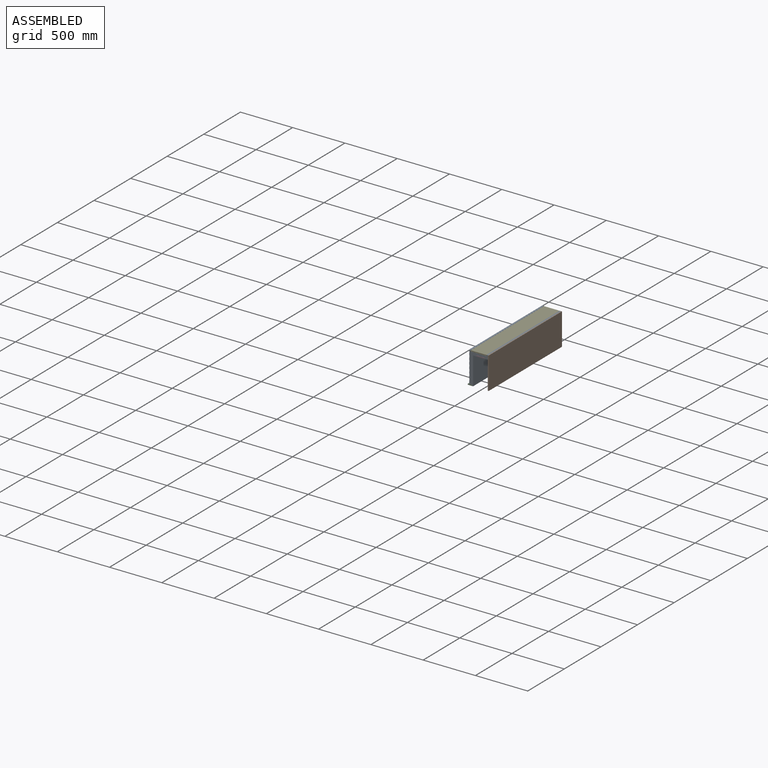
[diagram: assembled view]
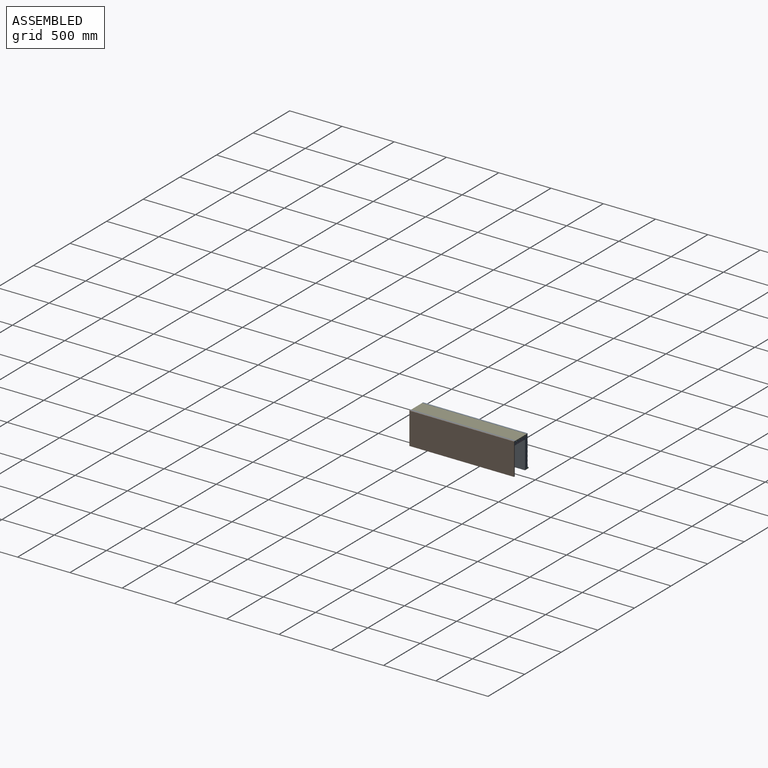
[diagram: assembled view, second angle]
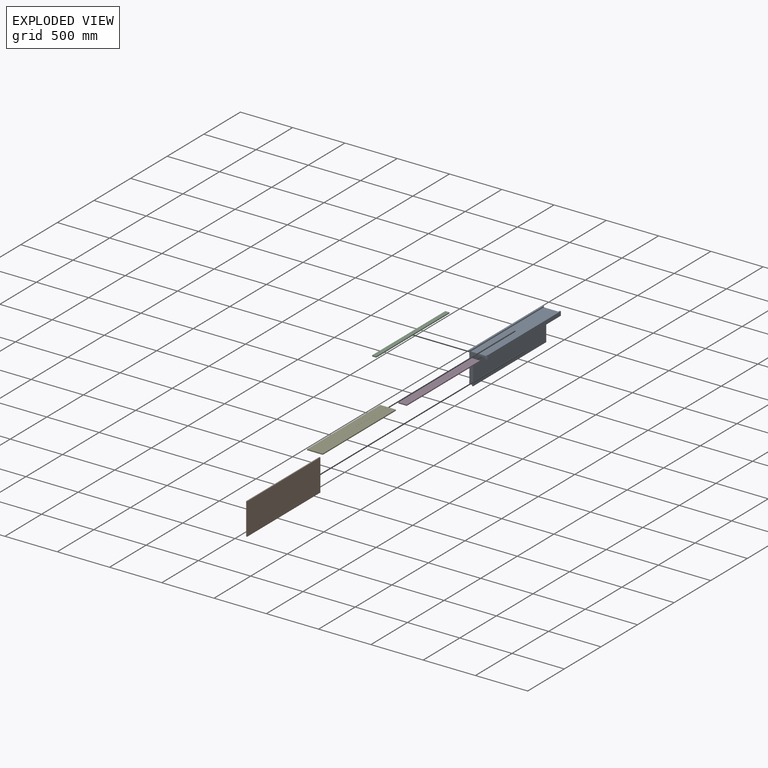
[diagram: exploded view]
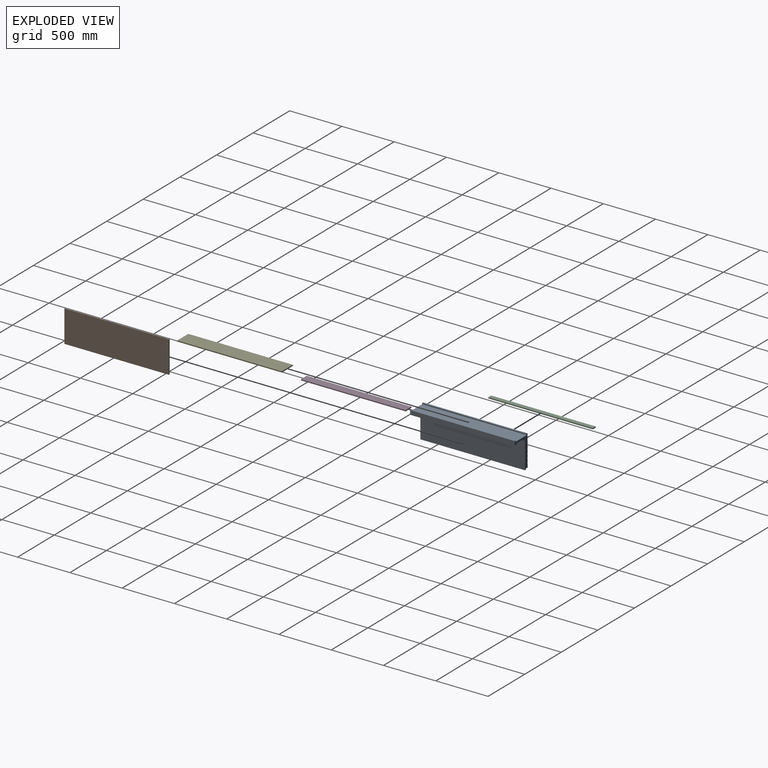
[diagram: exploded view, second angle]
ASSEMBLY  parts=5 mates=4
PART A: 46 faces, bbox 177x1000x306 mm
  f0: plane 1000x14mm, normal (0,0,1), area 14000mm2, adj f1,f2,f3,f41
  f1: plane 306x177mm, normal (0,-1,0), area 13769.7mm2, adj f0,f3,f4,f5,f6,f7,f8,f9
  f2: plane 306x177mm, normal (0,1,0), area 13769.7mm2, adj f0,f3,f4,f5,f6,f7,f8,f9
  f3: plane 1000x5mm, normal (-1,0,0), area 5000mm2, adj f0,f1,f2,f10
  f4: plane 1000x266mm, normal (1,0,0), area 265997.1mm2, adj f1,f2,f5,f44
  f5: plane 1000x30.4mm, normal (0,0,-1), area 30400mm2, adj f1,f2,f4,f6
  f6: plane 1000x11.5mm, normal (1,0,0), area 11499.5mm2, adj f1,f2,f5,f7
  f7: plane 1000x81mm, normal (0,0,-1), area 81000mm2, adj f1,f2,f6,f8
  f8: plane 1000x11.5mm, normal (-1,0,0), area 11500mm2, adj f1,f2,f7,f9
  f9: plane 1000x28.6mm, normal (0,0,-1), area 28600mm2, adj f1,f2,f8,f39
  f10: plane 1000x2mm, normal (0.45,0,-0.89), area 2236.1mm2, adj f1,f2,f3,f11
  f11: plane 1000x22mm, normal (-1,0,0), area 22000mm2, adj f1,f2,f10,f12
  f12: plane 1000x2mm, normal (0.45,0,0.89), area 2236.1mm2, adj f1,f2,f11,f13
  f13: plane 1000x20mm, normal (-1,0,0), area 20000mm2, adj f1,f2,f12,f14
  f14: plane 1000x2mm, normal (0.45,0,-0.89), area 2236.1mm2, adj f1,f2,f13,f15
  f15: plane 1000x22mm, normal (-1,0,0), area 22000mm2, adj f1,f2,f14,f16
  f16: plane 1000x2mm, normal (0.45,0,0.89), area 2236.1mm2, adj f1,f2,f15,f17
  f17: plane 1000x20mm, normal (-1,0,0), area 20000mm2, adj f1,f2,f16,f18
  f18: plane 1000x2mm, normal (0.45,0,-0.89), area 2236.1mm2, adj f1,f2,f17,f19
  f19: plane 1000x22mm, normal (-1,0,0), area 22000mm2, adj f1,f2,f18,f20
  f20: plane 1000x2mm, normal (0.45,0,0.89), area 2236.1mm2, adj f1,f2,f19,f21
  f21: plane 1000x20mm, normal (-1,0,0), area 20000mm2, adj f1,f2,f20,f22
  f22: plane 1000x2mm, normal (0.45,0,-0.89), area 2236.1mm2, adj f1,f2,f21,f23
  f23: plane 1000x22mm, normal (-1,0,0), area 22000mm2, adj f1,f2,f22,f24
  f24: plane 1000x2mm, normal (0.45,0,0.89), area 2236.1mm2, adj f1,f2,f23,f25
  f25: plane 1000x20mm, normal (-1,0,0), area 20000mm2, adj f1,f2,f24,f26
  f26: plane 1000x2mm, normal (0.45,0,-0.89), area 2236.1mm2, adj f1,f2,f25,f27
  f27: plane 1000x22mm, normal (-1,0,0), area 22000mm2, adj f1,f2,f26,f28
  f28: plane 1000x2mm, normal (0.45,0,0.89), area 2236.1mm2, adj f1,f2,f27,f29
  f29: plane 1000x20mm, normal (-1,0,0), area 20000mm2, adj f1,f2,f28,f30
  f30: plane 1000x2mm, normal (0.45,0,-0.89), area 2236.1mm2, adj f1,f2,f29,f31
  f31: plane 1000x22mm, normal (-1,0,0), area 22000mm2, adj f1,f2,f30,f32
  f32: plane 1000x2mm, normal (0.45,0,0.89), area 2236.1mm2, adj f1,f2,f31,f33
  f33: plane 1000x20mm, normal (-1,0,0), area 20000mm2, adj f1,f2,f32,f34
  f34: plane 1000x2mm, normal (0.45,0,-0.89), area 2236.1mm2, adj f1,f2,f33,f35
  f35: plane 1000x22mm, normal (-1,0,0), area 22000mm2, adj f1,f2,f34,f36
  f36: plane 1000x2mm, normal (0.45,0,0.89), area 2236.1mm2, adj f1,f2,f35,f37
  f37: plane 1000x30.97mm, normal (-1,0,0), area 30973mm2, adj f1,f2,f36,f45
  f38: plane 1000x12mm, normal (0,0,1), area 12000mm2, adj f1,f2,f39,f40
  f39: plane 1000x40mm, normal (1,0,0), area 40000mm2, adj f1,f2,f9,f38
  f40: plane 1000x11mm, normal (-1,0,0), area 11000mm2, adj f1,f2,f38,f42
  f41: plane 1000x11mm, normal (1,0,0), area 11000mm2, adj f0,f1,f2,f42
  f42: plane 1000x151mm, normal (0,0,1), area 151000mm2, adj f1,f2,f40,f41
  f43: plane 1000x10.02mm, normal (-1,0,0), area 10016.9mm2, adj f1,f2,f44,f45
  f44: plane 1000x10.5mm, normal (0,0,-1), area 10500mm2, adj f1,f2,f4,f43
  f45: plane 1000x26.5mm, normal (0,0,-1), area 26500mm2, adj f1,f2,f37,f43
PART B: 6 faces, bbox 306x1000x10 mm
  f0: plane 1000x10mm, normal (-1,0,0), area 10000mm2, adj f1,f3,f4,f5
  f1: plane 1000x306mm, normal (0,0,-1), area 306000mm2, adj f0,f2,f4,f5
  f2: plane 1000x10mm, normal (1,0,0), area 10000mm2, adj f1,f3,f4,f5
  f3: plane 1000x306mm, normal (0,0,1), area 306000mm2, adj f0,f2,f4,f5
  f4: plane 306x10mm, normal (0,-1,0), area 3060mm2, adj f0,f1,f2,f3
  f5: plane 306x10mm, normal (0,1,0), area 3060mm2, adj f0,f1,f2,f3
PART C: 6 faces, bbox 40x1000x10 mm
  f0: plane 1000x10mm, normal (-1,0,0), area 10000mm2, adj f1,f3,f4,f5
  f1: plane 1000x40mm, normal (0,0,-1), area 40000mm2, adj f0,f2,f4,f5
  f2: plane 1000x10mm, normal (1,0,0), area 10000mm2, adj f1,f3,f4,f5
  f3: plane 1000x40mm, normal (0,0,1), area 40000mm2, adj f0,f2,f4,f5
  f4: plane 40x10mm, normal (0,-1,0), area 400mm2, adj f0,f1,f2,f3
  f5: plane 40x10mm, normal (0,1,0), area 400mm2, adj f0,f1,f2,f3
PART D: 6 faces, bbox 80x1000x10 mm
  f0: plane 1000x10mm, normal (-1,0,0), area 10000mm2, adj f1,f3,f4,f5
  f1: plane 1000x80mm, normal (0,0,-1), area 80000mm2, adj f0,f2,f4,f5
  f2: plane 1000x10mm, normal (1,0,0), area 10000mm2, adj f1,f3,f4,f5
  f3: plane 1000x80mm, normal (0,0,1), area 80000mm2, adj f0,f2,f4,f5
  f4: plane 80x10mm, normal (0,-1,0), area 800mm2, adj f0,f1,f2,f3
  f5: plane 80x10mm, normal (0,1,0), area 800mm2, adj f0,f1,f2,f3
PART E: 6 faces, bbox 150x1000x10 mm
  f0: plane 1000x10mm, normal (-1,0,0), area 10000mm2, adj f1,f3,f4,f5
  f1: plane 1000x150mm, normal (0,0,-1), area 150000mm2, adj f0,f2,f4,f5
  f2: plane 1000x10mm, normal (1,0,0), area 10000mm2, adj f1,f3,f4,f5
  f3: plane 1000x150mm, normal (0,0,1), area 150000mm2, adj f0,f2,f4,f5
  f4: plane 150x10mm, normal (0,-1,0), area 1500mm2, adj f0,f1,f2,f3
  f5: plane 150x10mm, normal (0,1,0), area 1500mm2, adj f0,f1,f2,f3
PLACE A t=(-467.39,353.04,-403.56)mm
PLACE B rot(axis=(0,1,0),90deg) t=(-430.39,353.04,236.44)mm
PLACE C t=(-620.89,353.04,-69.53)mm
PLACE D t=(-539.49,353.04,197.44)mm
PLACE E t=(-592.89,353.04,225.94)mm
MATE fastened B.f4 <-> A.f1  axis (0,-1,0) through (-430.39,-646.96,236.44)mm
MATE fastened E.f4 <-> A.f1  axis (0,-1,0) through (-593.39,-646.96,225.44)mm
MATE fastened D.f4 <-> A.f1  axis (0,-1,0) through (-539.49,-646.96,207.44)mm
MATE fastened C.f4 <-> A.f1  axis (0,1,0) through (-580.89,-646.96,-59.53)mm
